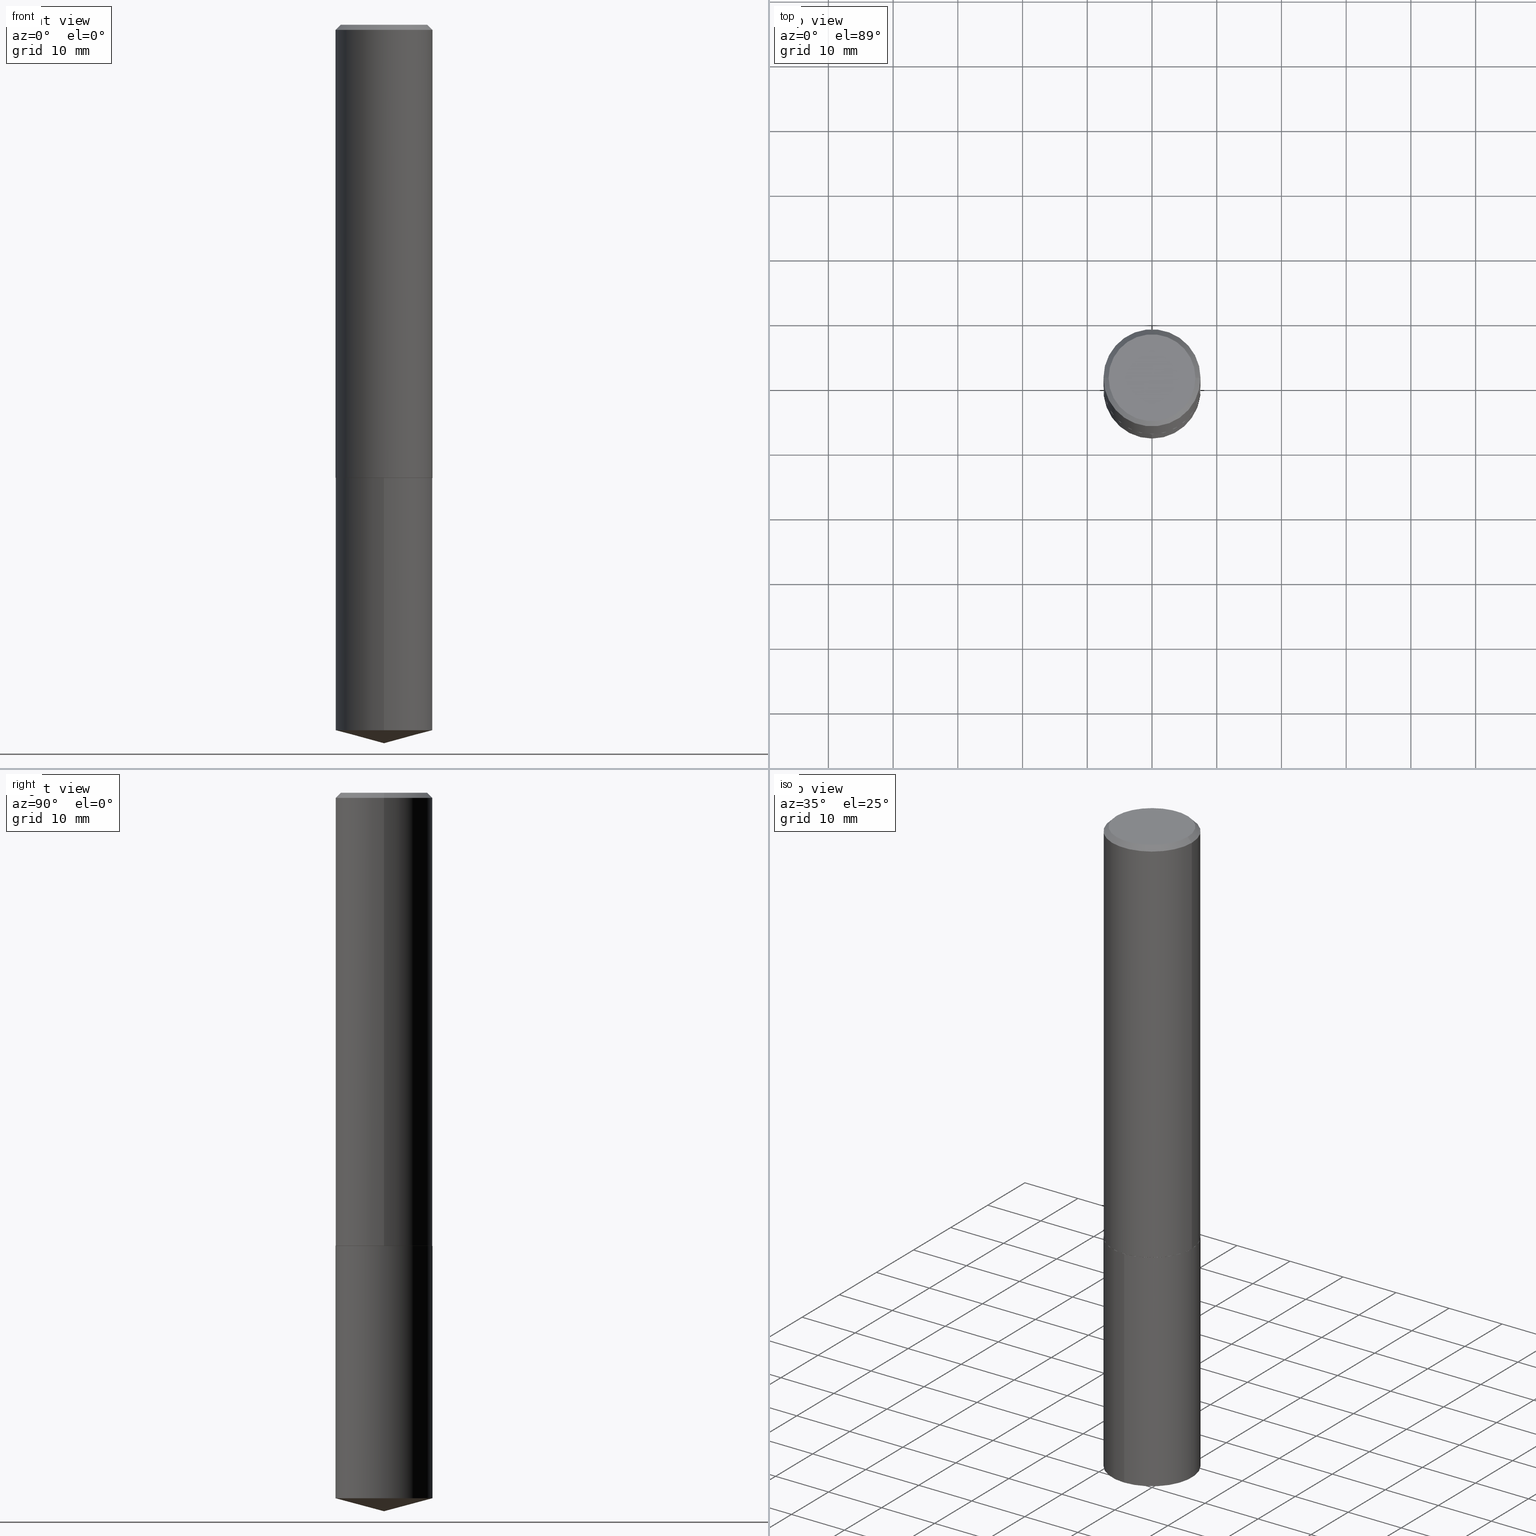
[diagram: canonical four-view strip — front | top / right | iso, engineering-drawing reading convention]
A machine part, canonical four-view strip (front | top / right | iso — engineering-drawing reading convention). The complete STEP part file that produces these views, byte-faithful:
ISO-10303-21;
HEADER;
FILE_DESCRIPTION (( 'STEP AP203' ),
    '1' );
FILE_NAME ('63091.STEP',
    '2024-04-23T10:03:07',
    ( '' ),
    ( '' ),
    'SwSTEP 2.0',
    'SolidWorks 2023',
    '' );
FILE_SCHEMA (( 'CONFIG_CONTROL_DESIGN' ));
ENDSEC;

DATA;
#1 = CARTESIAN_POINT ( 'NONE',  ( 1.068685023882552187E-28, -1.525825576740364689E-14, -4.370099999999999874 ) ) ;
#2 = CC_DESIGN_DATE_AND_TIME_ASSIGNMENT ( #309, #104, ( #65 ) ) ;
#3 = UNCERTAINTY_MEASURE_WITH_UNIT (LENGTH_MEASURE( 1.000000000000000082E-05 ), #367, 'distance_accuracy_value', 'NONE');
#4 = DATE_AND_TIME ( #66, #54 ) ;
#5 = ORIENTED_EDGE ( 'NONE', *, *, #42, .T. ) ;
#6 = APPROVAL_STATUS ( 'not_yet_approved' ) ;
#7 = VECTOR ( 'NONE', #241, 39.37007874015748143 ) ;
#8 = ORIENTED_EDGE ( 'NONE', *, *, #254, .F. ) ;
#9 = ADVANCED_FACE ( 'NONE', ( #375 ), #153, .T. ) ;
#10 = PERSON_AND_ORGANIZATION_ROLE ( 'design_supplier' ) ;
#11 = ORIENTED_EDGE ( 'NONE', *, *, #368, .T. ) ;
#12 = PERSON_AND_ORGANIZATION ( #169, #207 ) ;
#13 = ORIENTED_EDGE ( 'NONE', *, *, #95, .F. ) ;
#14 = CALENDAR_DATE ( 2024, 23, 4 ) ;
#15 = ORIENTED_EDGE ( 'NONE', *, *, #186, .F. ) ;
#16 = VECTOR ( 'NONE', #143, 39.37007874015748143 ) ;
#17 = CC_DESIGN_SECURITY_CLASSIFICATION ( #65, ( #141 ) ) ;
#18 = FACE_OUTER_BOUND ( 'NONE', #242, .T. ) ;
#19 = CC_DESIGN_DATE_AND_TIME_ASSIGNMENT ( #218, #98, ( #119 ) ) ;
#20 = CARTESIAN_POINT ( 'NONE',  ( -4.424869519081034775E-47, 6.317540961312786583E-33, 1.809415645740216366E-18 ) ) ;
#21 = DIRECTION ( 'NONE',  ( -6.982962677686265133E-15, -1.000000000000000000, 3.510303681827596257E-15 ) ) ;
#22 = AXIS2_PLACEMENT_3D ( 'NONE', #184, #48, #303 ) ;
#23 = FACE_OUTER_BOUND ( 'NONE', #43, .T. ) ;
#24 = CARTESIAN_POINT ( 'NONE',  ( 6.739712029846234775E-29, -9.622522569851706324E-15, -2.755999999999999339 ) ) ;
#25 = CYLINDRICAL_SURFACE ( 'NONE', #292, 0.2953000000000000624 ) ;
#26 = AXIS2_PLACEMENT_3D ( 'NONE', #312, #217, #67 ) ;
#27 =( GEOMETRIC_REPRESENTATION_CONTEXT ( 3 ) GLOBAL_UNCERTAINTY_ASSIGNED_CONTEXT ( ( #3 ) ) GLOBAL_UNIT_ASSIGNED_CONTEXT ( ( #367, #129, #221 ) ) REPRESENTATION_CONTEXT ( 'NONE', 'WORKASPACE' ) );
#28 = FACE_OUTER_BOUND ( 'NONE', #38, .T. ) ;
#29 = PRODUCT ( '63091', '63091', '', ( #311 ) ) ;
#30 = VERTEX_POINT ( 'NONE', #193 ) ;
#31 = APPROVAL ( #370, 'UNSPECIFIED' ) ;
#32 = DIRECTION ( 'NONE',  ( 1.000000000000000000, -6.982962677686269077E-15, 0.000000000000000000 ) ) ;
#33 = CARTESIAN_POINT ( 'NONE',  ( 2.098232698699643346E-15, 0.2952999999999904035, -2.756000000000000671 ) ) ;
#34 = VECTOR ( 'NONE', #142, 39.37007874015748143 ) ;
#35 = APPROVAL ( #162, 'UNSPECIFIED' ) ;
#36 = CC_DESIGN_APPROVAL ( #133, ( #65 ) ) ;
#37 = CARTESIAN_POINT ( 'NONE',  ( 6.739712029846235896E-29, -9.622522569851707902E-15, -2.755999999999999783 ) ) ;
#38 = EDGE_LOOP ( 'NONE', ( #94, #121, #363, #15 ) ) ;
#39 = APPROVAL_DATE_TIME ( #4, #31 ) ;
#40 = PERSON_AND_ORGANIZATION_ROLE ( 'creator' ) ;
#41 = FACE_OUTER_BOUND ( 'NONE', #234, .T. ) ;
#42 = EDGE_CURVE ( 'NONE', #130, #220, #164, .T. ) ;
#43 = EDGE_LOOP ( 'NONE', ( #152, #177 ) ) ;
#44 = VERTEX_POINT ( 'NONE', #281 ) ;
#45 = PERSON_AND_ORGANIZATION_ROLE ( 'creator' ) ;
#46 = DIRECTION ( 'NONE',  ( -2.445468806185136597E-29, 3.491481338843145583E-15, 1.000000000000000000 ) ) ;
#47 = ADVANCED_FACE ( 'NONE', ( #333 ), #372, .T. ) ;
#48 = DIRECTION ( 'NONE',  ( -2.445468806185136597E-29, 3.491481338843145583E-15, 1.000000000000000000 ) ) ;
#49 = DIRECTION ( 'NONE',  ( -2.445468806185136597E-29, 3.491481338843145583E-15, 1.000000000000000000 ) ) ;
#50 = DIRECTION ( 'NONE',  ( 2.438088387897960049E-29, -3.491481338843145188E-15, -1.000000000000000000 ) ) ;
#51 = ADVANCED_FACE ( 'NONE', ( #41 ), #274, .T. ) ;
#52 = DIRECTION ( 'NONE',  ( -2.445468806185136597E-29, 3.491481338843145583E-15, 1.000000000000000000 ) ) ;
#53 = CONICAL_SURFACE ( 'NONE', #101, 146.9311341562568600, 1.308996938995750314 ) ;
#54 = LOCAL_TIME ( 6, 3, 7.000000000000000000, #278 ) ;
#55 = CC_DESIGN_APPROVAL ( #35, ( #141 ) ) ;
#56 = DIRECTION ( 'NONE',  ( 1.000000000000000000, -6.982962677686265922E-15, 4.876176775795935793E-29 ) ) ;
#57 = DIRECTION ( 'NONE',  ( -6.982962677686266711E-15, -1.000000000000000000, 3.700437512582814508E-15 ) ) ;
#58 = EDGE_CURVE ( 'NONE', #44, #371, #362, .T. ) ;
#59 = CONICAL_SURFACE ( 'NONE', #282, 0.2953000000000000069, 0.7853981633974450594 ) ;
#60 = CARTESIAN_POINT ( 'NONE',  ( -8.849739038162069550E-47, 1.263508192262557317E-32, 3.618831291480432732E-18 ) ) ;
#61 = CARTESIAN_POINT ( 'NONE',  ( -0.2953000000000000069, 1.952960086881905857E-15, -0.03125000000000020817 ) ) ;
#62 = ORIENTED_EDGE ( 'NONE', *, *, #331, .T. ) ;
#63 = DIRECTION ( 'NONE',  ( -2.445468806185136877E-29, 3.491481338843145188E-15, 1.000000000000000000 ) ) ;
#64 = AXIS2_PLACEMENT_3D ( 'NONE', #60, #326, #269 ) ;
#65 = SECURITY_CLASSIFICATION ( '', '', #135 ) ;
#66 = CALENDAR_DATE ( 2024, 23, 4 ) ;
#67 = DIRECTION ( 'NONE',  ( -1.000000000000000000, 6.982962677686267499E-15, 0.000000000000000000 ) ) ;
#68 = ORIENTED_EDGE ( 'NONE', *, *, #73, .T. ) ;
#69 = COORDINATED_UNIVERSAL_TIME_OFFSET ( 5, 0, .BEHIND. ) ;
#70 = AXIS2_PLACEMENT_3D ( 'NONE', #24, #317, #168 ) ;
#71 = VERTEX_POINT ( 'NONE', #106 ) ;
#72 = EDGE_LOOP ( 'NONE', ( #357, #301, #369 ) ) ;
#73 = EDGE_CURVE ( 'NONE', #205, #102, #199, .T. ) ;
#74 = ORIENTED_EDGE ( 'NONE', *, *, #194, .T. ) ;
#75 = CARTESIAN_POINT ( 'NONE',  ( 0.000000000000000000, 0.000000000000000000, 0.000000000000000000 ) ) ;
#76 = AXIS2_PLACEMENT_3D ( 'NONE', #37, #176, #294 ) ;
#77 = DIRECTION ( 'NONE',  ( -2.445550241585909983E-29, 3.491364718714222925E-15, 1.000000000000000000 ) ) ;
#78 = EDGE_CURVE ( 'NONE', #371, #30, #316, .T. ) ;
#79 = FACE_OUTER_BOUND ( 'NONE', #340, .T. ) ;
#80 = DIRECTION ( 'NONE',  ( -6.982962677686265133E-15, -1.000000000000000000, 3.510303681827596257E-15 ) ) ;
#81 = AXIS2_PLACEMENT_3D ( 'NONE', #20, #50, #384 ) ;
#82 = LOCAL_TIME ( 6, 3, 7.000000000000000000, #96 ) ;
#83 = DIRECTION ( 'NONE',  ( -6.982962677686266711E-15, -1.000000000000000000, 3.700437512582814508E-15 ) ) ;
#84 = ADVANCED_FACE ( 'NONE', ( #23 ), #348, .F. ) ;
#85 = DIRECTION ( 'NONE',  ( -2.445550241585909983E-29, 3.491364718714222925E-15, 1.000000000000000000 ) ) ;
#86 = ORIENTED_EDGE ( 'NONE', *, *, #360, .T. ) ;
#87 = AXIS2_PLACEMENT_3D ( 'NONE', #358, #235, #32 ) ;
#88 = LINE ( 'NONE', #265, #275 ) ;
#89 = ORIENTED_EDGE ( 'NONE', *, *, #198, .T. ) ;
#90 = LINE ( 'NONE', #61, #206 ) ;
#91 = DIRECTION ( 'NONE',  ( -2.445468806185136597E-29, 3.491481338843145583E-15, 1.000000000000000000 ) ) ;
#92 = AXIS2_PLACEMENT_3D ( 'NONE', #366, #49, #261 ) ;
#93 = LOCAL_TIME ( 6, 3, 7.000000000000000000, #361 ) ;
#94 = ORIENTED_EDGE ( 'NONE', *, *, #58, .T. ) ;
#95 = EDGE_CURVE ( 'NONE', #30, #211, #181, .T. ) ;
#96 = COORDINATED_UNIVERSAL_TIME_OFFSET ( 5, 0, .BEHIND. ) ;
#97 = ORIENTED_EDGE ( 'NONE', *, *, #232, .F. ) ;
#98 = DATE_TIME_ROLE ( 'creation_date' ) ;
#99 = ORIENTED_EDGE ( 'NONE', *, *, #304, .T. ) ;
#100 = PERSON_AND_ORGANIZATION ( #169, #207 ) ;
#101 = AXIS2_PLACEMENT_3D ( 'NONE', #346, #283, #21 ) ;
#102 = VERTEX_POINT ( 'NONE', #377 ) ;
#103 = CC_DESIGN_PERSON_AND_ORGANIZATION_ASSIGNMENT ( #305, #215, ( #29 ) ) ;
#104 = DATE_TIME_ROLE ( 'classification_date' ) ;
#105 = VERTEX_POINT ( 'NONE', #226 ) ;
#106 = CARTESIAN_POINT ( 'NONE',  ( 2.098232698699681211E-15, 0.2952999999999904590, -2.756000000000000671 ) ) ;
#107 = APPLICATION_CONTEXT ( 'configuration controlled 3d designs of mechanical parts and assemblies' ) ;
#108 = ADVANCED_FACE ( 'NONE', ( #79 ), #59, .T. ) ;
#109 = CARTESIAN_POINT ( 'NONE',  ( 7.642090019328602662E-31, -1.091087918388490267E-16, -0.03125000000000020817 ) ) ;
#110 = AXIS2_PLACEMENT_3D ( 'NONE', #297, #203, #356 ) ;
#111 = LOCAL_TIME ( 6, 3, 7.000000000000000000, #69 ) ;
#112 = CARTESIAN_POINT ( 'NONE',  ( -0.2953000000000001735, 2.098232698699577081E-15, -1.452561532152274683E-29 ) ) ;
#113 = CARTESIAN_POINT ( 'NONE',  ( 6.738489295443143094E-29, -9.620776829182285610E-15, -2.755499999999999616 ) ) ;
#114 = CARTESIAN_POINT ( 'NONE',  ( 1.049356954220298021E-28, -1.498167874454699460E-14, -4.290974603475090632 ) ) ;
#115 = AXIS2_PLACEMENT_3D ( 'NONE', #284, #139, #57 ) ;
#116 = CC_DESIGN_PERSON_AND_ORGANIZATION_ASSIGNMENT ( #336, #10, ( #141 ) ) ;
#117 = FACE_OUTER_BOUND ( 'NONE', #222, .T. ) ;
#118 = ORIENTED_EDGE ( 'NONE', *, *, #159, .T. ) ;
#119 = PRODUCT_DEFINITION ( 'UNKNOWN', '', #141, #239 ) ;
#120 = CARTESIAN_POINT ( 'NONE',  ( 7.642090019328602662E-31, -1.091087918388490267E-16, -0.03125000000000020817 ) ) ;
#121 = ORIENTED_EDGE ( 'NONE', *, *, #78, .T. ) ;
#122 = AXIS2_PLACEMENT_3D ( 'NONE', #114, #351, #83 ) ;
#123 = CARTESIAN_POINT ( 'NONE',  ( 0.2953000000000000069, -2.171177670559603663E-15, -0.03125000000000020817 ) ) ;
#124 = APPLICATION_CONTEXT ( 'configuration controlled 3d designs of mechanical parts and assemblies' ) ;
#125 = LINE ( 'NONE', #209, #338 ) ;
#126 = ORIENTED_EDGE ( 'NONE', *, *, #325, .F. ) ;
#127 = ADVANCED_FACE ( 'NONE', ( #288 ), #53, .T. ) ;
#128 = VECTOR ( 'NONE', #63, 39.37007874015748143 ) ;
#129 =( NAMED_UNIT ( * ) PLANE_ANGLE_UNIT ( ) SI_UNIT ( $, .RADIAN. ) );
#130 = VERTEX_POINT ( 'NONE', #230 ) ;
#131 = APPROVAL_DATE_TIME ( #276, #133 ) ;
#132 = ORIENTED_EDGE ( 'NONE', *, *, #95, .T. ) ;
#133 = APPROVAL ( #6, 'UNSPECIFIED' ) ;
#134 = ORIENTED_EDGE ( 'NONE', *, *, #304, .F. ) ;
#135 = SECURITY_CLASSIFICATION_LEVEL ( 'unclassified' ) ;
#136 = EDGE_LOOP ( 'NONE', ( #158, #11, #337 ) ) ;
#137 = CARTESIAN_POINT ( 'NONE',  ( 0.2953000000000003400, -1.168284570790304451E-14, -2.755499999999999616 ) ) ;
#138 = PRODUCT_DEFINITION_SHAPE ( 'NONE', 'NONE',  #119 ) ;
#139 = DIRECTION ( 'NONE',  ( -2.445550241585909983E-29, 3.491364718714222925E-15, 1.000000000000000000 ) ) ;
#140 = CARTESIAN_POINT ( 'NONE',  ( 0.2953000000000003400, -1.168284570790304451E-14, -2.755499999999999616 ) ) ;
#141 = PRODUCT_DEFINITION_FORMATION_WITH_SPECIFIED_SOURCE ( 'ANY', '', #29, .NOT_KNOWN. ) ;
#142 = DIRECTION ( 'NONE',  ( -0.7071067811867889352, 7.493145998871226640E-15, 0.7071067811863060992 ) ) ;
#143 = DIRECTION ( 'NONE',  ( 0.7071067811867889352, -2.468850131084785360E-15, 0.7071067811863060992 ) ) ;
#144 = DIRECTION ( 'NONE',  ( 1.000000000000000000, -6.982962677686267499E-15, 0.000000000000000000 ) ) ;
#145 = ADVANCED_BREP_SHAPE_REPRESENTATION ( '63091', ( #376, #237, #308 ), #27 ) ;
#146 = AXIS2_PLACEMENT_3D ( 'NONE', #172, #255, #289 ) ;
#147 = APPROVAL_PERSON_ORGANIZATION ( #100, #35, #280 ) ;
#148 = EDGE_LOOP ( 'NONE', ( #157, #8, #86, #5 ) ) ;
#149 = ADVANCED_FACE ( 'NONE', ( #318 ), #243, .T. ) ;
#150 = DIRECTION ( 'NONE',  ( -6.982962677686266711E-15, -1.000000000000000000, 3.700437512582814508E-15 ) ) ;
#151 = CARTESIAN_POINT ( 'NONE',  ( 6.738489295443143094E-29, -9.620776829182285610E-15, -2.755499999999999616 ) ) ;
#152 = ORIENTED_EDGE ( 'NONE', *, *, #254, .T. ) ;
#153 = CONICAL_SURFACE ( 'NONE', #26, 0.2953000000000000069, 0.7853981633974450594 ) ;
#154 = DIRECTION ( 'NONE',  ( -2.445468806185136597E-29, 3.491481338843145583E-15, 1.000000000000000000 ) ) ;
#155 = ADVANCED_FACE ( 'NONE', ( #18 ), #197, .F. ) ;
#156 = PERSON_AND_ORGANIZATION_ROLE ( 'classification_officer' ) ;
#157 = ORIENTED_EDGE ( 'NONE', *, *, #353, .F. ) ;
#158 = ORIENTED_EDGE ( 'NONE', *, *, #257, .F. ) ;
#159 = EDGE_CURVE ( 'NONE', #371, #44, #187, .T. ) ;
#160 = DIRECTION ( 'NONE',  ( 0.000000000000000000, 0.000000000000000000, 1.000000000000000000 ) ) ;
#161 = EDGE_LOOP ( 'NONE', ( #249, #89 ) ) ;
#162 = APPROVAL_STATUS ( 'not_yet_approved' ) ;
#163 = DIRECTION ( 'NONE',  ( 1.000000000000000000, -6.982962677686267499E-15, 0.000000000000000000 ) ) ;
#164 = CIRCLE ( 'NONE', #350, 0.2953000000000000069 ) ;
#165 = ORIENTED_EDGE ( 'NONE', *, *, #198, .F. ) ;
#166 = DIRECTION ( 'NONE',  ( 1.000000000000000000, -6.982962677686271444E-15, 0.000000000000000000 ) ) ;
#167 = EDGE_CURVE ( 'NONE', #205, #306, #259, .T. ) ;
#168 = DIRECTION ( 'NONE',  ( 1.000000000000000000, -6.982962677686271444E-15, 0.000000000000000000 ) ) ;
#169 = PERSON ( 'UNSPECIFIED', 'UNSPECIFIED', 'UNSPECIFIED', ('UNSPECIFIED'), ('UNSPECIFIED'), ('UNSPECIFIED') ) ;
#170 = CARTESIAN_POINT ( 'NONE',  ( -8.559443089945837666E-28, 1.221973695240583860E-13, 34.99997874015748067 ) ) ;
#171 = CIRCLE ( 'NONE', #76, 0.2953000000000000624 ) ;
#172 = CARTESIAN_POINT ( 'NONE',  ( 6.739712029846235896E-29, -9.622522569851707902E-15, -2.755999999999999783 ) ) ;
#173 = DIRECTION ( 'NONE',  ( 1.000000000000000000, -6.982962677686268288E-15, 4.876176775795936353E-29 ) ) ;
#174 = CARTESIAN_POINT ( 'NONE',  ( -0.2640500000000000069, 1.898405690962482095E-15, 3.618831291467347964E-18 ) ) ;
#175 = AXIS2_PLACEMENT_3D ( 'NONE', #120, #154, #144 ) ;
#176 = DIRECTION ( 'NONE',  ( -2.445550241585909983E-29, 3.491364718714222925E-15, 1.000000000000000000 ) ) ;
#177 = ORIENTED_EDGE ( 'NONE', *, *, #232, .T. ) ;
#178 = LINE ( 'NONE', #1, #344 ) ;
#179 = EDGE_LOOP ( 'NONE', ( #62, #74, #134, #324 ) ) ;
#180 = DIRECTION ( 'NONE',  ( -2.445468806185136597E-29, 3.491481338843145583E-15, 1.000000000000000000 ) ) ;
#181 = CIRCLE ( 'NONE', #355, 0.2953000000000003400 ) ;
#182 = CARTESIAN_POINT ( 'NONE',  ( 0.000000000000000000, 0.000000000000000000, 0.000000000000000000 ) ) ;
#183 = PERSON_AND_ORGANIZATION ( #169, #207 ) ;
#184 = CARTESIAN_POINT ( 'NONE',  ( 6.738489295443143094E-29, -9.620776829182285610E-15, -2.755499999999999616 ) ) ;
#185 = CARTESIAN_POINT ( 'NONE',  ( 7.642090019328602662E-31, -1.091087918388490267E-16, -0.03125000000000020817 ) ) ;
#186 = EDGE_CURVE ( 'NONE', #44, #211, #201, .T. ) ;
#187 = CIRCLE ( 'NONE', #70, 0.2948000000000003396 ) ;
#188 = APPROVAL_PERSON_ORGANIZATION ( #273, #133, #365 ) ;
#189 = PERSON_AND_ORGANIZATION ( #169, #207 ) ;
#190 = ORIENTED_EDGE ( 'NONE', *, *, #186, .T. ) ;
#191 = DIRECTION ( 'NONE',  ( 1.000000000000000000, 0.000000000000000000, 0.000000000000000000 ) ) ;
#192 = ORIENTED_EDGE ( 'NONE', *, *, #78, .F. ) ;
#193 = CARTESIAN_POINT ( 'NONE',  ( -0.2953000000000003400, -7.522544130482708923E-15, -2.755499999999999616 ) ) ;
#194 = EDGE_CURVE ( 'NONE', #30, #130, #381, .T. ) ;
#195 = DIRECTION ( 'NONE',  ( -2.445468806185136597E-29, 3.491481338843145583E-15, 1.000000000000000000 ) ) ;
#196 = CARTESIAN_POINT ( 'NONE',  ( -2.062068878720687510E-15, -0.2953000000000096659, -2.755999999999998895 ) ) ;
#197 = PLANE ( 'NONE',  #380 ) ;
#198 = EDGE_CURVE ( 'NONE', #71, #306, #314, .T. ) ;
#199 = CIRCLE ( 'NONE', #115, 0.2953000000000000624 ) ;
#200 = CARTESIAN_POINT ( 'NONE',  ( 1.030650564944438453E-28, -4.514671097301707046E-15, -2.755999999999999783 ) ) ;
#201 = LINE ( 'NONE', #140, #16 ) ;
#202 = DIRECTION ( 'NONE',  ( -6.982962677686266711E-15, -1.000000000000000000, 3.700437512582814508E-15 ) ) ;
#203 = DIRECTION ( 'NONE',  ( 2.445550241585909702E-29, -3.491364718714222925E-15, -1.000000000000000000 ) ) ;
#204 = EDGE_CURVE ( 'NONE', #102, #205, #385, .T. ) ;
#205 = VERTEX_POINT ( 'NONE', #321 ) ;
#206 = VECTOR ( 'NONE', #293, 39.37007874015748143 ) ;
#207 = ORGANIZATION ( 'UNSPECIFIED', 'UNSPECIFIED', '' ) ;
#208 = DIRECTION ( 'NONE',  ( -2.445550241585909983E-29, 3.491364718714222925E-15, 1.000000000000000000 ) ) ;
#209 = CARTESIAN_POINT ( 'NONE',  ( 1.068730304683155053E-28, -1.525761295725302550E-14, -4.370099999999999874 ) ) ;
#210 = CARTESIAN_POINT ( 'NONE',  ( 0.2953000000000001735, -2.062068878720756141E-15, 1.439935001892540778E-29 ) ) ;
#211 = VERTEX_POINT ( 'NONE', #137 ) ;
#212 = AXIS2_PLACEMENT_3D ( 'NONE', #352, #85, #202 ) ;
#213 = APPLICATION_PROTOCOL_DEFINITION ( 'international standard', 'config_control_design', 1994, #124 ) ;
#214 = ORIENTED_EDGE ( 'NONE', *, *, #42, .F. ) ;
#215 = PERSON_AND_ORGANIZATION_ROLE ( 'design_owner' ) ;
#216 = ADVANCED_FACE ( 'NONE', ( #224 ), #342, .T. ) ;
#217 = DIRECTION ( 'NONE',  ( 2.445468806185136597E-29, -3.491481338843145583E-15, -1.000000000000000000 ) ) ;
#218 = DATE_AND_TIME ( #248, #93 ) ;
#219 = ORIENTED_EDGE ( 'NONE', *, *, #167, .T. ) ;
#220 = VERTEX_POINT ( 'NONE', #123 ) ;
#221 =( NAMED_UNIT ( * ) SI_UNIT ( $, .STERADIAN. ) SOLID_ANGLE_UNIT ( ) );
#222 = EDGE_LOOP ( 'NONE', ( #68, #253, #272, #335 ) ) ;
#223 = ADVANCED_FACE ( 'NONE', ( #266 ), #299, .F. ) ;
#224 = FACE_OUTER_BOUND ( 'NONE', #179, .T. ) ;
#225 = CIRCLE ( 'NONE', #87, 0.2953000000000003400 ) ;
#226 = CARTESIAN_POINT ( 'NONE',  ( 1.068729911075458456E-28, -1.525761295725302550E-14, -4.370099999999999874 ) ) ;
#227 = DIRECTION ( 'NONE',  ( -2.445468806185136877E-29, 3.491481338843145188E-15, 1.000000000000000000 ) ) ;
#228 = DIRECTION ( 'NONE',  ( 2.445468806185136597E-29, -3.491481338843145583E-15, -1.000000000000000000 ) ) ;
#229 = AXIS2_PLACEMENT_3D ( 'NONE', #75, #195, #173 ) ;
#230 = CARTESIAN_POINT ( 'NONE',  ( -0.2953000000000000069, -2.766710111810989090E-15, -0.03125000000000020817 ) ) ;
#231 = CYLINDRICAL_SURFACE ( 'NONE', #212, 0.2953000000000000624 ) ;
#232 = EDGE_CURVE ( 'NONE', #247, #310, #262, .T. ) ;
#233 = FACE_OUTER_BOUND ( 'NONE', #298, .T. ) ;
#234 = EDGE_LOOP ( 'NONE', ( #341, #132, #267, #214 ) ) ;
#235 = DIRECTION ( 'NONE',  ( -2.445468806185136597E-29, 3.491481338843145583E-15, 1.000000000000000000 ) ) ;
#236 = ORIENTED_EDGE ( 'NONE', *, *, #159, .F. ) ;
#237 = MANIFOLD_SOLID_BREP ( 'Body-Move/Copy2[2]', #307 ) ;
#238 = AXIS2_PLACEMENT_3D ( 'NONE', #347, #52, #166 ) ;
#239 = DESIGN_CONTEXT ( 'detailed design', #124, 'design' ) ;
#240 = LINE ( 'NONE', #33, #7 ) ;
#241 = DIRECTION ( 'NONE',  ( -2.445550241585909983E-29, 3.491364718714222925E-15, 1.000000000000000000 ) ) ;
#242 = EDGE_LOOP ( 'NONE', ( #245, #236 ) ) ;
#243 = CONICAL_SURFACE ( 'NONE', #287, 146.9311341562568600, 1.308996938995750314 ) ;
#244 = APPLICATION_PROTOCOL_DEFINITION ( 'international standard', 'config_control_design', 1994, #107 ) ;
#245 = ORIENTED_EDGE ( 'NONE', *, *, #58, .F. ) ;
#246 = SHAPE_DEFINITION_REPRESENTATION ( #138, #145 ) ;
#247 = VERTEX_POINT ( 'NONE', #290 ) ;
#248 = CALENDAR_DATE ( 2024, 23, 4 ) ;
#249 = ORIENTED_EDGE ( 'NONE', *, *, #285, .T. ) ;
#250 = CONICAL_SURFACE ( 'NONE', #364, 0.2953000000000003400, 0.7853981633977896726 ) ;
#251 = CALENDAR_DATE ( 2024, 23, 4 ) ;
#252 = DIMENSIONAL_EXPONENTS ( 1.000000000000000000, 0.000000000000000000, 0.000000000000000000, 0.000000000000000000, 0.000000000000000000, 0.000000000000000000, 0.000000000000000000 ) ;
#253 = ORIENTED_EDGE ( 'NONE', *, *, #325, .T. ) ;
#254 = EDGE_CURVE ( 'NONE', #310, #247, #329, .T. ) ;
#255 = DIRECTION ( 'NONE',  ( -2.445550241585909983E-29, 3.491364718714222925E-15, 1.000000000000000000 ) ) ;
#256 = CARTESIAN_POINT ( 'NONE',  ( -0.2953000000000003400, -7.522544130482708923E-15, -2.755499999999999616 ) ) ;
#257 = EDGE_CURVE ( 'NONE', #105, #102, #125, .T. ) ;
#258 = AXIS2_PLACEMENT_3D ( 'NONE', #323, #180, #328 ) ;
#259 = LINE ( 'NONE', #196, #389 ) ;
#260 = DIRECTION ( 'NONE',  ( -2.445468806185136597E-29, 3.491481338843145583E-15, 1.000000000000000000 ) ) ;
#261 = DIRECTION ( 'NONE',  ( 1.000000000000000000, -6.982962677686268288E-15, 4.876176775795936353E-29 ) ) ;
#262 = CIRCLE ( 'NONE', #64, 0.2640500000000000069 ) ;
#263 = CARTESIAN_POINT ( 'NONE',  ( -0.2948000000000003396, -7.525193357656817757E-15, -2.755999999999999339 ) ) ;
#264 = ADVANCED_FACE ( 'NONE', ( #233 ), #25, .T. ) ;
#265 = CARTESIAN_POINT ( 'NONE',  ( 0.2953000000000000069, -2.135013850580782723E-15, -0.03125000000000020817 ) ) ;
#266 = FACE_OUTER_BOUND ( 'NONE', #161, .T. ) ;
#267 = ORIENTED_EDGE ( 'NONE', *, *, #291, .T. ) ;
#268 = CC_DESIGN_PERSON_AND_ORGANIZATION_ASSIGNMENT ( #183, #40, ( #141 ) ) ;
#269 = DIRECTION ( 'NONE',  ( 1.000000000000000000, -6.982962677686266711E-15, 4.876118690523375132E-29 ) ) ;
#270 = DIRECTION ( 'NONE',  ( 0.7071067811865452413, -7.319954787623248157E-15, -0.7071067811865497932 ) ) ;
#271 = APPROVAL_ROLE ( '' ) ;
#272 = ORIENTED_EDGE ( 'NONE', *, *, #285, .F. ) ;
#273 = PERSON_AND_ORGANIZATION ( #169, #207 ) ;
#274 = CYLINDRICAL_SURFACE ( 'NONE', #92, 0.2953000000000001735 ) ;
#275 = VECTOR ( 'NONE', #270, 39.37007874015748143 ) ;
#276 = DATE_AND_TIME ( #334, #82 ) ;
#277 = ORIENTED_EDGE ( 'NONE', *, *, #204, .T. ) ;
#278 = COORDINATED_UNIVERSAL_TIME_OFFSET ( 5, 0, .BEHIND. ) ;
#279 = ORIENTED_EDGE ( 'NONE', *, *, #360, .F. ) ;
#280 = APPROVAL_ROLE ( '' ) ;
#281 = CARTESIAN_POINT ( 'NONE',  ( 0.2948000000000003396, -1.168109996723362222E-14, -2.755999999999999339 ) ) ;
#282 = AXIS2_PLACEMENT_3D ( 'NONE', #109, #228, #382 ) ;
#283 = DIRECTION ( 'NONE',  ( -2.445550241585909983E-29, 3.491364718714222925E-15, 1.000000000000000000 ) ) ;
#284 = CARTESIAN_POINT ( 'NONE',  ( 1.049356954220298021E-28, -1.498167874454699460E-14, -4.290974603475090632 ) ) ;
#285 = EDGE_CURVE ( 'NONE', #306, #71, #171, .T. ) ;
#286 = DIRECTION ( 'NONE',  ( -2.445550241585909983E-29, 3.491364718714222925E-15, 1.000000000000000000 ) ) ;
#287 = AXIS2_PLACEMENT_3D ( 'NONE', #170, #77, #80 ) ;
#288 = FACE_OUTER_BOUND ( 'NONE', #72, .T. ) ;
#289 = DIRECTION ( 'NONE',  ( -6.982962677686266711E-15, -1.000000000000000000, 3.700437512582814508E-15 ) ) ;
#290 = CARTESIAN_POINT ( 'NONE',  ( 0.2640500000000000069, -1.973264173446177597E-15, 3.618831291493780197E-18 ) ) ;
#291 = EDGE_CURVE ( 'NONE', #211, #220, #388, .T. ) ;
#292 = AXIS2_PLACEMENT_3D ( 'NONE', #390, #208, #150 ) ;
#293 = DIRECTION ( 'NONE',  ( -0.7071067811865452413, 2.468850131082233000E-15, -0.7071067811865497932 ) ) ;
#294 = DIRECTION ( 'NONE',  ( -6.982962677686266711E-15, -1.000000000000000000, 3.700437512582814508E-15 ) ) ;
#295 = EDGE_LOOP ( 'NONE', ( #192, #118, #190, #13 ) ) ;
#296 = CC_DESIGN_PERSON_AND_ORGANIZATION_ASSIGNMENT ( #189, #156, ( #65 ) ) ;
#297 = CARTESIAN_POINT ( 'NONE',  ( 6.739712029846235896E-29, -9.622522569851707902E-15, -2.755999999999999783 ) ) ;
#298 = EDGE_LOOP ( 'NONE', ( #126, #277, #219, #165 ) ) ;
#299 = PLANE ( 'NONE',  #110 ) ;
#300 = VECTOR ( 'NONE', #227, 39.37007874015748143 ) ;
#301 = ORIENTED_EDGE ( 'NONE', *, *, #257, .T. ) ;
#302 = DATE_AND_TIME ( #14, #315 ) ;
#303 = DIRECTION ( 'NONE',  ( 1.000000000000000000, -6.982962677686269077E-15, 0.000000000000000000 ) ) ;
#304 = EDGE_CURVE ( 'NONE', #220, #130, #343, .T. ) ;
#305 = PERSON_AND_ORGANIZATION ( #169, #207 ) ;
#306 = VERTEX_POINT ( 'NONE', #322 ) ;
#307 = CLOSED_SHELL ( 'NONE', ( #108, #216, #378, #155, #47, #51, #9, #84 ) ) ;
#308 = AXIS2_PLACEMENT_3D ( 'NONE', #182, #160, #191 ) ;
#309 = DATE_AND_TIME ( #251, #111 ) ;
#310 = VERTEX_POINT ( 'NONE', #174 ) ;
#311 = MECHANICAL_CONTEXT ( 'NONE', #107, 'mechanical' ) ;
#312 = CARTESIAN_POINT ( 'NONE',  ( 7.642090019328602662E-31, -1.091087918388490267E-16, -0.03125000000000020817 ) ) ;
#313 = ORIENTED_EDGE ( 'NONE', *, *, #353, .T. ) ;
#314 = CIRCLE ( 'NONE', #146, 0.2953000000000000624 ) ;
#315 = LOCAL_TIME ( 6, 3, 7.000000000000000000, #374 ) ;
#316 = LINE ( 'NONE', #256, #34 ) ;
#317 = DIRECTION ( 'NONE',  ( -2.445468806185136597E-29, 3.491481338843145583E-15, 1.000000000000000000 ) ) ;
#318 = FACE_OUTER_BOUND ( 'NONE', #136, .T. ) ;
#319 = DIRECTION ( 'NONE',  ( -2.438088387897960049E-29, 3.491481338843145188E-15, 1.000000000000000000 ) ) ;
#320 = PRODUCT_RELATED_PRODUCT_CATEGORY ( 'detail', '', ( #29 ) ) ;
#321 = CARTESIAN_POINT ( 'NONE',  ( -2.062068878720650433E-15, -0.2953000000000151060, -4.290974603475088855 ) ) ;
#322 = CARTESIAN_POINT ( 'NONE',  ( -2.062068878720687510E-15, -0.2953000000000096659, -2.755999999999998895 ) ) ;
#323 = CARTESIAN_POINT ( 'NONE',  ( -8.849739038162069550E-47, 1.263508192262557317E-32, 3.618831291480432732E-18 ) ) ;
#324 = ORIENTED_EDGE ( 'NONE', *, *, #291, .F. ) ;
#325 = EDGE_CURVE ( 'NONE', #102, #71, #240, .T. ) ;
#326 = DIRECTION ( 'NONE',  ( -2.445468806185136597E-29, 3.491481338843145583E-15, 1.000000000000000000 ) ) ;
#327 = DIRECTION ( 'NONE',  ( 6.863315791527696626E-15, 0.9659258262890699775, 0.2588190451025143557 ) ) ;
#328 = DIRECTION ( 'NONE',  ( 1.000000000000000000, -6.982962677686266711E-15, 4.876118690523375132E-29 ) ) ;
#329 = CIRCLE ( 'NONE', #258, 0.2640500000000000069 ) ;
#330 = CC_DESIGN_APPROVAL ( #31, ( #119 ) ) ;
#331 = EDGE_CURVE ( 'NONE', #211, #30, #225, .T. ) ;
#332 = APPROVAL_DATE_TIME ( #302, #35 ) ;
#333 = FACE_OUTER_BOUND ( 'NONE', #295, .T. ) ;
#334 = CALENDAR_DATE ( 2024, 23, 4 ) ;
#335 = ORIENTED_EDGE ( 'NONE', *, *, #167, .F. ) ;
#336 = PERSON_AND_ORGANIZATION ( #169, #207 ) ;
#337 = ORIENTED_EDGE ( 'NONE', *, *, #204, .F. ) ;
#338 = VECTOR ( 'NONE', #327, 39.37007874015748143 ) ;
#339 = PERSON_AND_ORGANIZATION ( #169, #207 ) ;
#340 = EDGE_LOOP ( 'NONE', ( #97, #313, #99, #279 ) ) ;
#341 = ORIENTED_EDGE ( 'NONE', *, *, #194, .F. ) ;
#342 = CYLINDRICAL_SURFACE ( 'NONE', #229, 0.2953000000000001735 ) ;
#343 = CIRCLE ( 'NONE', #175, 0.2953000000000000069 ) ;
#344 = VECTOR ( 'NONE', #359, 39.37007874015748143 ) ;
#345 = CC_DESIGN_PERSON_AND_ORGANIZATION_ASSIGNMENT ( #339, #45, ( #119 ) ) ;
#346 = CARTESIAN_POINT ( 'NONE',  ( -8.559443089945837666E-28, 1.221973695240583860E-13, 34.99997874015748067 ) ) ;
#347 = CARTESIAN_POINT ( 'NONE',  ( 6.739712029846234775E-29, -9.622522569851706324E-15, -2.755999999999999339 ) ) ;
#348 = PLANE ( 'NONE',  #81 ) ;
#349 = CLOSED_SHELL ( 'NONE', ( #383, #127, #149, #264, #223 ) ) ;
#350 = AXIS2_PLACEMENT_3D ( 'NONE', #185, #46, #163 ) ;
#351 = DIRECTION ( 'NONE',  ( -2.445550241585909983E-29, 3.491364718714222925E-15, 1.000000000000000000 ) ) ;
#352 = CARTESIAN_POINT ( 'NONE',  ( 6.739712029846235896E-29, -9.622522569851707902E-15, -2.755999999999999783 ) ) ;
#353 = EDGE_CURVE ( 'NONE', #247, #220, #88, .T. ) ;
#354 = LENGTH_MEASURE_WITH_UNIT ( LENGTH_MEASURE( 0.02539999999999999897 ), #387 );
#355 = AXIS2_PLACEMENT_3D ( 'NONE', #113, #260, #379 ) ;
#356 = DIRECTION ( 'NONE',  ( 6.982962677686265922E-15, 1.000000000000000000, -3.491364718714222925E-15 ) ) ;
#357 = ORIENTED_EDGE ( 'NONE', *, *, #368, .F. ) ;
#358 = CARTESIAN_POINT ( 'NONE',  ( 6.738489295443143094E-29, -9.620776829182285610E-15, -2.755499999999999616 ) ) ;
#359 = DIRECTION ( 'NONE',  ( -6.745023994389843077E-15, -0.9659258262890682012, 0.2588190451025211281 ) ) ;
#360 = EDGE_CURVE ( 'NONE', #310, #130, #90, .T. ) ;
#361 = COORDINATED_UNIVERSAL_TIME_OFFSET ( 5, 0, .BEHIND. ) ;
#362 = CIRCLE ( 'NONE', #238, 0.2948000000000003396 ) ;
#363 = ORIENTED_EDGE ( 'NONE', *, *, #331, .F. ) ;
#364 = AXIS2_PLACEMENT_3D ( 'NONE', #151, #91, #386 ) ;
#365 = APPROVAL_ROLE ( '' ) ;
#366 = CARTESIAN_POINT ( 'NONE',  ( 0.000000000000000000, 0.000000000000000000, 0.000000000000000000 ) ) ;
#367 =( CONVERSION_BASED_UNIT ( 'INCH', #354 ) LENGTH_UNIT ( ) NAMED_UNIT ( #252 ) );
#368 = EDGE_CURVE ( 'NONE', #105, #205, #178, .T. ) ;
#369 = ORIENTED_EDGE ( 'NONE', *, *, #73, .F. ) ;
#370 = APPROVAL_STATUS ( 'not_yet_approved' ) ;
#371 = VERTEX_POINT ( 'NONE', #263 ) ;
#372 = CONICAL_SURFACE ( 'NONE', #22, 0.2953000000000003400, 0.7853981633977896726 ) ;
#373 = APPROVAL_PERSON_ORGANIZATION ( #12, #31, #271 ) ;
#374 = COORDINATED_UNIVERSAL_TIME_OFFSET ( 5, 0, .BEHIND. ) ;
#375 = FACE_OUTER_BOUND ( 'NONE', #148, .T. ) ;
#376 = MANIFOLD_SOLID_BREP ( 'Body-Move/Copy2[1]', #349 ) ;
#377 = CARTESIAN_POINT ( 'NONE',  ( 2.098232698699681211E-15, 0.2952999999999851299, -4.290974603475091520 ) ) ;
#378 = ADVANCED_FACE ( 'NONE', ( #28 ), #250, .T. ) ;
#379 = DIRECTION ( 'NONE',  ( 1.000000000000000000, -6.982962677686269077E-15, 0.000000000000000000 ) ) ;
#380 = AXIS2_PLACEMENT_3D ( 'NONE', #200, #319, #56 ) ;
#381 = LINE ( 'NONE', #112, #300 ) ;
#382 = DIRECTION ( 'NONE',  ( -1.000000000000000000, 6.982962677686267499E-15, 0.000000000000000000 ) ) ;
#383 = ADVANCED_FACE ( 'NONE', ( #117 ), #231, .T. ) ;
#384 = DIRECTION ( 'NONE',  ( -1.000000000000000000, 6.982962677686265922E-15, -4.876176775795935793E-29 ) ) ;
#385 = CIRCLE ( 'NONE', #122, 0.2953000000000000624 ) ;
#386 = DIRECTION ( 'NONE',  ( 1.000000000000000000, -6.982962677686269077E-15, 0.000000000000000000 ) ) ;
#387 =( LENGTH_UNIT ( ) NAMED_UNIT ( * ) SI_UNIT ( $, .METRE. ) );
#388 = LINE ( 'NONE', #210, #128 ) ;
#389 = VECTOR ( 'NONE', #286, 39.37007874015748143 ) ;
#390 = CARTESIAN_POINT ( 'NONE',  ( 6.739712029846235896E-29, -9.622522569851707902E-15, -2.755999999999999783 ) ) ;
ENDSEC;
END-ISO-10303-21;
